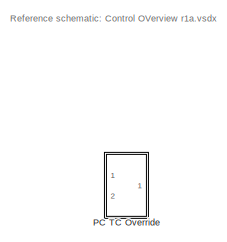
[diagram: root canvas - part 1/2, top left region]
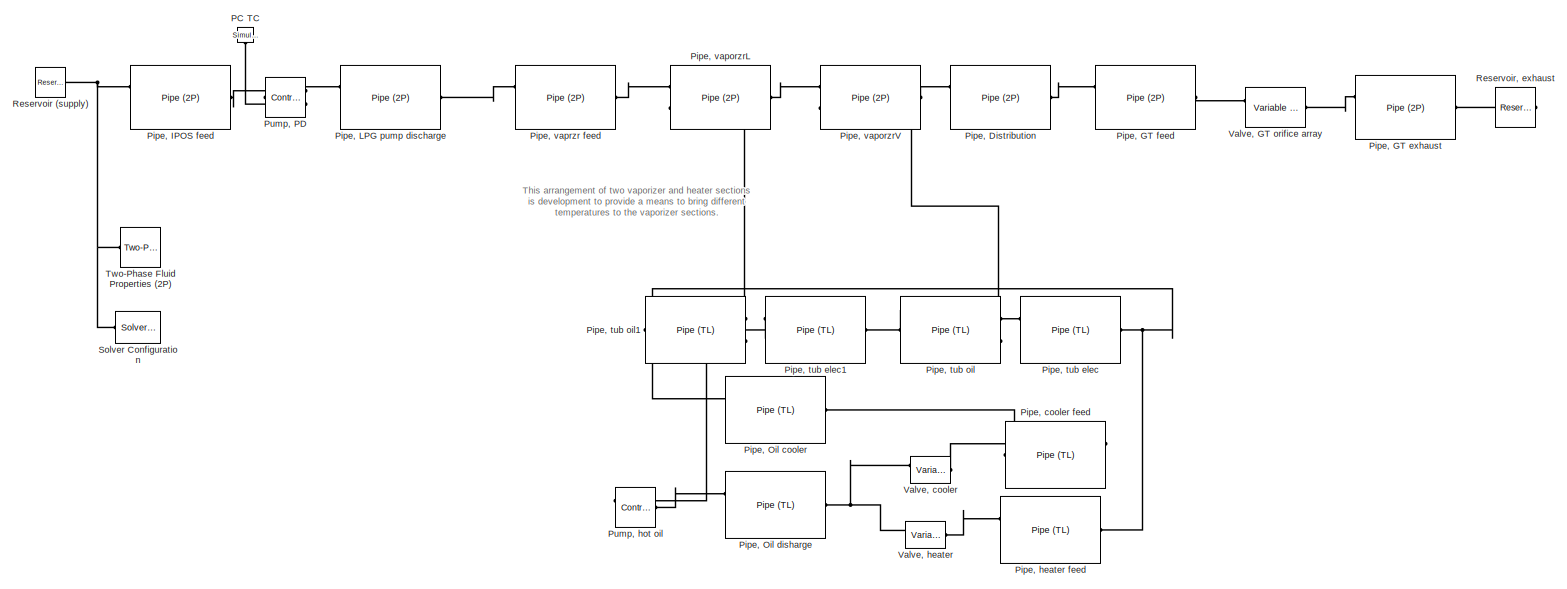
[diagram: root canvas - part 2/2, full width, middle band]
MODEL slx_cc9070d78904
KIND model
CONFIG AbsTol = auto
CONFIG EnableMultiTasking = off
CONFIG FixedStep = auto
CONFIG MaxStep = auto
CONFIG MinStep = auto
CONFIG RelTol = 1e-3
CONFIG SampleTimeConstraint = Unconstrained
CONFIG Solver = VariableStepAuto
CONFIG SolverName = VariableStepAuto
CONFIG StartTime = 0.0
CONFIG StopTime = 10.0
BLOCK [Reference] PC TC  REF=nesl_utility/Simulink-PS
Converter
  Ports = [1, 0, 0, 0, 0, 0, 1]
  SourceBlock = nesl_utility/Simulink-PS\nConverter
  SourceProductBaseCode = SS
  SourceProductName = Simscape
  SourceType = Simulink-PS\nConverter
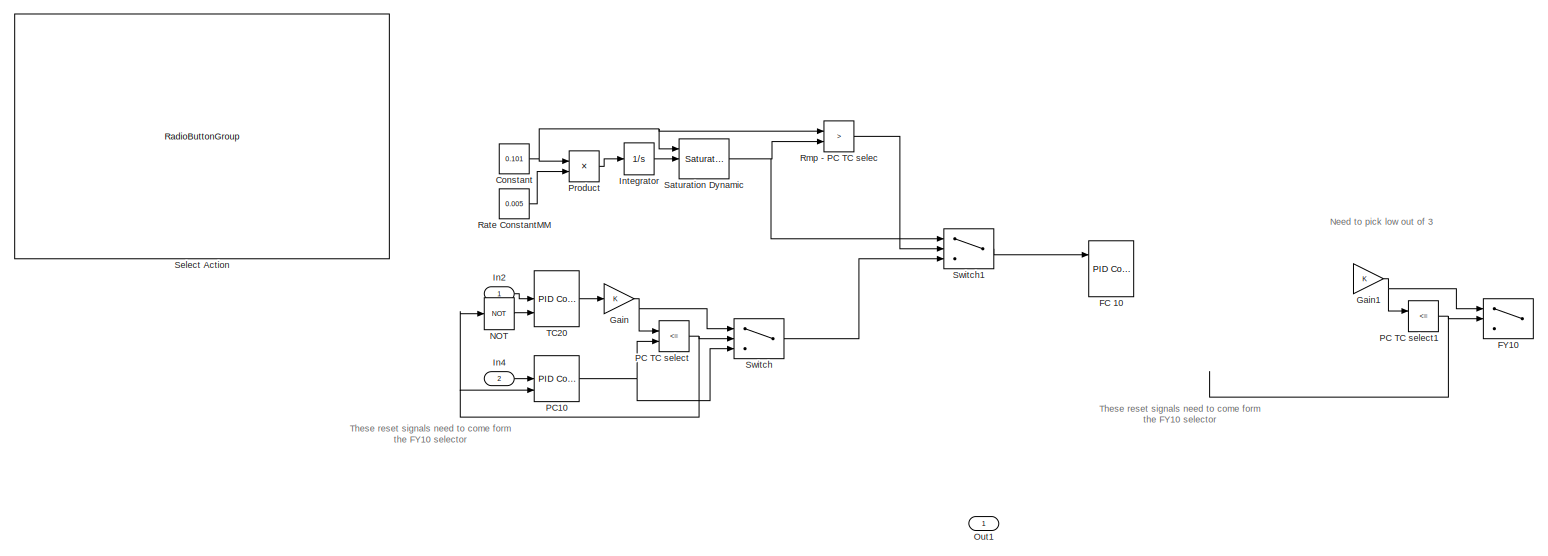
[diagram: PC TC Override - part 1/1, most of the canvas]
BLOCK [SubSystem] PC TC Override
  Ports = [2, 1]
  RequestExecContextInheritance = off
BLOCK [Constant] PC TC Override/Constant
  Value = 0.101
BLOCK [Reference] PC TC Override/FC 10  REF=simulink/Continuous/PID Controller (2DOF)
  Ports = [3, 1]
  SourceBlock = simulink/Continuous/PID Controller (2DOF)
  SourceProductBaseCode = SL
  SourceProductName = Simulink
  SourceType = PID 2dof
BLOCK [Switch] PC TC Override/FY10
  InputSameDT = off
  SaturateOnIntegerOverflow = off
BLOCK [Gain] PC TC Override/Gain
  OutDataTypeStr = Inherit: Inherit via internal rule
  ParamDataTypeStr = Inherit: Inherit via internal rule
  SaturateOnIntegerOverflow = off
BLOCK [Gain] PC TC Override/Gain1
  OutDataTypeStr = Inherit: Inherit via internal rule
  ParamDataTypeStr = Inherit: Inherit via internal rule
  SaturateOnIntegerOverflow = off
BLOCK [Inport] PC TC Override/In2
  IconDisplay = Port number
BLOCK [Inport] PC TC Override/In4
  IconDisplay = Port number
  Port = 2
BLOCK [Integrator] PC TC Override/Integrator
  Ports = [1, 1]
  ZeroCross = off
BLOCK [Logic] PC TC Override/NOT
  AllPortsSameDT = off
  IconShape = distinctive
  Operator = NOT
  OutDataTypeStr = boolean
  Ports = [1, 1]
BLOCK [Outport] PC TC Override/Out1
  IconDisplay = Port number
BLOCK [RelationalOperator] PC TC Override/PC TC select
  InputSameDT = off
  Operator = <=
  OutDataTypeStr = boolean
  Ports = [2, 1]
  RndMeth = Simplest
BLOCK [RelationalOperator] PC TC Override/PC TC select1
  InputSameDT = off
  Operator = <=
  OutDataTypeStr = boolean
  Ports = [2, 1]
  RndMeth = Simplest
BLOCK [Reference] PC TC Override/PC10  REF=simulink/Continuous/PID Controller (2DOF)
  Ports = [3, 1]
  SourceBlock = simulink/Continuous/PID Controller (2DOF)
  SourceProductBaseCode = SL
  SourceProductName = Simulink
  SourceType = PID 2dof
BLOCK [Product] PC TC Override/Product
  InputSameDT = off
  OutDataTypeStr = Inherit: Inherit via internal rule
  Ports = [2, 1]
  RndMeth = Floor
  SaturateOnIntegerOverflow = off
BLOCK [Constant] PC TC Override/Rate ConstantMM
  Value = 0.005
BLOCK [RelationalOperator] PC TC Override/Rmp - PC TC selec
  InputSameDT = off
  Operator = >
  OutDataTypeStr = boolean
  Ports = [2, 1]
  RndMeth = Simplest
BLOCK [Reference] PC TC Override/Saturation Dynamic  REF=simulink/Discontinuities/Saturation
Dynamic
  Ports = [3, 1]
  SourceBlock = simulink/Discontinuities/Saturation\nDynamic
  SourceProductBaseCode = SL
  SourceProductName = Simulink
  SourceType = Saturation Dynamic
BLOCK [RadioButtonGroup] PC TC Override/Select Action
  ButtonGroupName = Flow Rate
  SelectedLabel = Ramp to Start
BLOCK [Switch] PC TC Override/Switch
  InputSameDT = off
  SaturateOnIntegerOverflow = off
BLOCK [Switch] PC TC Override/Switch1
  Criteria = u2 > Threshold
  InputSameDT = off
  SaturateOnIntegerOverflow = off
BLOCK [Reference] PC TC Override/TC20  REF=simulink/Continuous/PID Controller (2DOF)
  Ports = [3, 1]
  SourceBlock = simulink/Continuous/PID Controller (2DOF)
  SourceProductBaseCode = SL
  SourceProductName = Simulink
  SourceType = PID 2dof
BLOCK [Reference] Pipe, Distribution  REF=fl_lib/Two-Phase Fluid/Elements/Pipe (2P)
  Ports = [0, 0, 0, 0, 0, 2, 1]
  SourceBlock = fl_lib/Two-Phase Fluid/Elements/Pipe (2P)
  SourceProductBaseCode = SS
  SourceProductName = Simscape
  SourceType = Pipe (2P)
BLOCK [Reference] Pipe, GT exhaust  REF=fl_lib/Two-Phase Fluid/Elements/Pipe (2P)
  Ports = [0, 0, 0, 0, 0, 2, 1]
  SourceBlock = fl_lib/Two-Phase Fluid/Elements/Pipe (2P)
  SourceProductBaseCode = SS
  SourceProductName = Simscape
  SourceType = Pipe (2P)
BLOCK [Reference] Pipe, GT feed  REF=fl_lib/Two-Phase Fluid/Elements/Pipe (2P)
  Ports = [0, 0, 0, 0, 0, 2, 1]
  SourceBlock = fl_lib/Two-Phase Fluid/Elements/Pipe (2P)
  SourceProductBaseCode = SS
  SourceProductName = Simscape
  SourceType = Pipe (2P)
BLOCK [Reference] Pipe, IPOS feed  REF=fl_lib/Two-Phase Fluid/Elements/Pipe (2P)
  Ports = [0, 0, 0, 0, 0, 2, 1]
  SourceBlock = fl_lib/Two-Phase Fluid/Elements/Pipe (2P)
  SourceProductBaseCode = SS
  SourceProductName = Simscape
  SourceType = Pipe (2P)
BLOCK [Reference] Pipe, LPG pump discharge  REF=fl_lib/Two-Phase Fluid/Elements/Pipe (2P)
  Ports = [0, 0, 0, 0, 0, 2, 1]
  SourceBlock = fl_lib/Two-Phase Fluid/Elements/Pipe (2P)
  SourceProductBaseCode = SS
  SourceProductName = Simscape
  SourceType = Pipe (2P)
BLOCK [Reference] Pipe, Oil cooler  REF=fl_lib/Thermal Liquid/Elements/Pipe (TL)
  Ports = [0, 0, 0, 0, 0, 2, 1]
  SourceBlock = fl_lib/Thermal Liquid/Elements/Pipe (TL)
  SourceProductBaseCode = SS
  SourceProductName = Simscape
  SourceType = Pipe (TL)
BLOCK [Reference] Pipe, Oil disharge  REF=fl_lib/Thermal Liquid/Elements/Pipe (TL)
  Ports = [0, 0, 0, 0, 0, 2, 1]
  SourceBlock = fl_lib/Thermal Liquid/Elements/Pipe (TL)
  SourceProductBaseCode = SS
  SourceProductName = Simscape
  SourceType = Pipe (TL)
BLOCK [Reference] Pipe, cooler feed  REF=fl_lib/Thermal Liquid/Elements/Pipe (TL)
  Ports = [0, 0, 0, 0, 0, 2, 1]
  SourceBlock = fl_lib/Thermal Liquid/Elements/Pipe (TL)
  SourceProductBaseCode = SS
  SourceProductName = Simscape
  SourceType = Pipe (TL)
BLOCK [Reference] Pipe, heater feed  REF=fl_lib/Thermal Liquid/Elements/Pipe (TL)
  Ports = [0, 0, 0, 0, 0, 2, 1]
  SourceBlock = fl_lib/Thermal Liquid/Elements/Pipe (TL)
  SourceProductBaseCode = SS
  SourceProductName = Simscape
  SourceType = Pipe (TL)
BLOCK [Reference] Pipe, tub elec  REF=fl_lib/Thermal Liquid/Elements/Pipe (TL)
  Ports = [0, 0, 0, 0, 0, 2, 1]
  SourceBlock = fl_lib/Thermal Liquid/Elements/Pipe (TL)
  SourceProductBaseCode = SS
  SourceProductName = Simscape
  SourceType = Pipe (TL)
BLOCK [Reference] Pipe, tub elec1  REF=fl_lib/Thermal Liquid/Elements/Pipe (TL)
  Ports = [0, 0, 0, 0, 0, 2, 1]
  SourceBlock = fl_lib/Thermal Liquid/Elements/Pipe (TL)
  SourceProductBaseCode = SS
  SourceProductName = Simscape
  SourceType = Pipe (TL)
BLOCK [Reference] Pipe, tub oil  REF=fl_lib/Thermal Liquid/Elements/Pipe (TL)
  Ports = [0, 0, 0, 0, 0, 2, 1]
  SourceBlock = fl_lib/Thermal Liquid/Elements/Pipe (TL)
  SourceProductBaseCode = SS
  SourceProductName = Simscape
  SourceType = Pipe (TL)
BLOCK [Reference] Pipe, tub oil1  REF=fl_lib/Thermal Liquid/Elements/Pipe (TL)
  Ports = [0, 0, 0, 0, 0, 2, 1]
  SourceBlock = fl_lib/Thermal Liquid/Elements/Pipe (TL)
  SourceProductBaseCode = SS
  SourceProductName = Simscape
  SourceType = Pipe (TL)
BLOCK [Reference] Pipe, vaporzrL  REF=fl_lib/Two-Phase Fluid/Elements/Pipe (2P)
  Ports = [0, 0, 0, 0, 0, 2, 1]
  SourceBlock = fl_lib/Two-Phase Fluid/Elements/Pipe (2P)
  SourceProductBaseCode = SS
  SourceProductName = Simscape
  SourceType = Pipe (2P)
BLOCK [Reference] Pipe, vaporzrV  REF=fl_lib/Two-Phase Fluid/Elements/Pipe (2P)
  Ports = [0, 0, 0, 0, 0, 2, 1]
  SourceBlock = fl_lib/Two-Phase Fluid/Elements/Pipe (2P)
  SourceProductBaseCode = SS
  SourceProductName = Simscape
  SourceType = Pipe (2P)
BLOCK [Reference] Pipe, vaprzr feed  REF=fl_lib/Two-Phase Fluid/Elements/Pipe (2P)
  Ports = [0, 0, 0, 0, 0, 2, 1]
  SourceBlock = fl_lib/Two-Phase Fluid/Elements/Pipe (2P)
  SourceProductBaseCode = SS
  SourceProductName = Simscape
  SourceType = Pipe (2P)
BLOCK [Reference] Pump, PD  REF=fl_lib/Two-Phase Fluid/Sources/Controlled Mass Flow
Rate Source (2P)
  Ports = [0, 0, 0, 0, 0, 2, 1]
  SourceBlock = fl_lib/Two-Phase Fluid/Sources/Controlled Mass Flow\nRate Source (2P)
  SourceProductBaseCode = SS
  SourceProductName = Simscape
  SourceType = Controlled Mass Flow\nRate Source (2P)
BLOCK [Reference] Pump, hot oil  REF=fl_lib/Thermal Liquid/Sources/Controlled
Volumetric Flow Rate
Source (TL)
  Ports = [0, 0, 0, 0, 0, 2, 1]
  SourceBlock = fl_lib/Thermal Liquid/Sources/Controlled\nVolumetric Flow Rate\nSource (TL)
  SourceProductBaseCode = SS
  SourceProductName = Simscape
  SourceType = Controlled\nVolumetric Flow Rate\nSource (TL)
BLOCK [Reference] Reservoir (supply)  REF=fl_lib/Two-Phase Fluid/Elements/Reservoir (2P)
  Ports = [0, 0, 0, 0, 0, 1]
  SourceBlock = fl_lib/Two-Phase Fluid/Elements/Reservoir (2P)
  SourceProductBaseCode = SS
  SourceProductName = Simscape
  SourceType = Reservoir (2P)
BLOCK [Reference] Reservoir, exhaust  REF=fl_lib/Two-Phase Fluid/Elements/Reservoir (2P)
  Ports = [0, 0, 0, 0, 0, 1]
  SourceBlock = fl_lib/Two-Phase Fluid/Elements/Reservoir (2P)
  SourceProductBaseCode = SS
  SourceProductName = Simscape
  SourceType = Reservoir (2P)
BLOCK [Reference] Solver Configuration  REF=nesl_utility/Solver
Configuration
  Ports = [0, 0, 0, 0, 0, 0, 1]
  SourceBlock = nesl_utility/Solver\nConfiguration
  SourceProductBaseCode = SS
  SourceProductName = Simscape
  SourceType = Solver\nConfiguration
BLOCK [Reference] Two-Phase Fluid Properties (2P)  REF=fl_lib/Two-Phase Fluid/Utilities/Two-Phase Fluid
Properties (2P)
  Ports = [0, 0, 0, 0, 0, 0, 1]
  SourceBlock = fl_lib/Two-Phase Fluid/Utilities/Two-Phase Fluid\nProperties (2P)
  SourceProductBaseCode = SS
  SourceProductName = Simscape
  SourceType = Two-Phase Fluid\nProperties (2P)
BLOCK [Reference] Valve, GT orifice array  REF=fl_lib/Two-Phase Fluid/Elements/Variable Local
Restriction (2P)
  Ports = [0, 0, 0, 0, 0, 2, 1]
  SourceBlock = fl_lib/Two-Phase Fluid/Elements/Variable Local\nRestriction (2P)
  SourceProductBaseCode = SS
  SourceProductName = Simscape
  SourceType = Variable Local\nRestriction (2P)
BLOCK [Reference] Valve, cooler  REF=fl_lib/Thermal Liquid/Elements/Variable Local
Restriction (TL)
  Ports = [0, 0, 0, 0, 0, 2, 1]
  SourceBlock = fl_lib/Thermal Liquid/Elements/Variable Local\nRestriction (TL)
  SourceProductBaseCode = SS
  SourceProductName = Simscape
  SourceType = Variable Local\nRestriction (TL)
BLOCK [Reference] Valve, heater  REF=fl_lib/Thermal Liquid/Elements/Variable Local
Restriction (TL)
  Ports = [0, 0, 0, 0, 0, 2, 1]
  SourceBlock = fl_lib/Thermal Liquid/Elements/Variable Local\nRestriction (TL)
  SourceProductBaseCode = SS
  SourceProductName = Simscape
  SourceType = Variable Local\nRestriction (TL)
ANNOTATION (root): Reference schematic: Control OVerview r1a.vsdx
ANNOTATION (root): This arrangement of two vaporizer and heater sections is development to provide a means to bring different temperatures to the vaporizer sections.
ANNOTATION PC TC Override: Need to pick low out of 3
ANNOTATION PC TC Override: These reset signals need to come form the FY10 selector
NET PC TC Override/Constant:1 -> PC TC Override/Product:1, PC TC Override/Rmp - PC TC selec:1, PC TC Override/Saturation Dynamic:1
NET PC TC Override/Gain1:1 -> PC TC Override/FY10:1, PC TC Override/PC TC select1:1
NET PC TC Override/Gain:1 -> PC TC Override/PC TC select:1, PC TC Override/Switch:1
LINE PC TC Override/In2:1 -> PC TC Override/TC20:2
LINE PC TC Override/In4:1 -> PC TC Override/PC10:2
LINE PC TC Override/Integrator:1 -> PC TC Override/Saturation Dynamic:2
LINE PC TC Override/NOT:1 -> PC TC Override/TC20:3
LINE PC TC Override/PC TC select1:1 -> PC TC Override/FY10:2
NET PC TC Override/PC TC select:1 -> PC TC Override/NOT:1, PC TC Override/PC10:3, PC TC Override/Switch:2
NET PC TC Override/PC10:1 -> PC TC Override/PC TC select:2, PC TC Override/Switch:3
LINE PC TC Override/Product:1 -> PC TC Override/Integrator:1
LINE PC TC Override/Rate ConstantMM:1 -> PC TC Override/Product:2
LINE PC TC Override/Rmp - PC TC selec:1 -> PC TC Override/Switch1:2
NET PC TC Override/Saturation Dynamic:1 -> PC TC Override/Rmp - PC TC selec:2, PC TC Override/Switch1:1
LINE PC TC Override/Switch1:1 -> PC TC Override/FC 10:1
LINE PC TC Override/Switch:1 -> PC TC Override/Switch1:3
LINE PC TC Override/TC20:1 -> PC TC Override/Gain:1
PLINE PC TC:RConn1 -- Pump, PD:LConn2
PLINE Pipe, Distribution:LConn1 -- Pipe, vaporzrV:RConn1
PLINE Pipe, Distribution:RConn1 -- Pipe, GT feed:LConn1
PLINE Pipe, GT exhaust:LConn1 -- Valve, GT orifice array:RConn1
PLINE Pipe, GT exhaust:RConn1 -- Reservoir, exhaust:LConn1
PLINE Pipe, GT feed:RConn1 -- Valve, GT orifice array:LConn1
PNET net1: Pipe, IPOS feed:LConn1 -- Reservoir (supply):LConn1 -- Solver Configuration:RConn1 -- Two-Phase Fluid Properties (2P):RConn1
PLINE Pipe, IPOS feed:RConn1 -- Pump, PD:LConn1
PLINE Pipe, LPG pump discharge:LConn1 -- Pump, PD:RConn1
PLINE Pipe, LPG pump discharge:RConn1 -- Pipe, vaprzr feed:LConn1
PNET net2: Pipe, Oil cooler:LConn1 -- Pipe, heater feed:RConn1 -- Pipe, tub elec:RConn1
PLINE Pipe, Oil cooler:RConn1 -- Pipe, cooler feed:RConn1
PLINE Pipe, Oil disharge:LConn1 -- Pump, hot oil:RConn1
PNET net3: Pipe, Oil disharge:RConn1 -- Valve, cooler:LConn1 -- Valve, heater:LConn1
PLINE Pipe, cooler feed:LConn1 -- Valve, cooler:RConn1
PLINE Pipe, heater feed:LConn1 -- Valve, heater:RConn1
PLINE Pipe, tub elec1:LConn1 -- Pipe, tub oil1:RConn1
PLINE Pipe, tub elec1:RConn1 -- Pipe, tub oil:LConn1
PLINE Pipe, tub elec:LConn1 -- Pipe, tub oil:RConn1
PLINE Pipe, tub oil1:LConn1 -- Pump, hot oil:LConn1
PLINE Pipe, tub oil1:LConn2 -- Pipe, vaporzrL:LConn2
PLINE Pipe, tub oil:LConn2 -- Pipe, vaporzrV:LConn2
PLINE Pipe, vaporzrL:LConn1 -- Pipe, vaprzr feed:RConn1
PLINE Pipe, vaporzrL:RConn1 -- Pipe, vaporzrV:LConn1
note: NET lines group one-source signal fan-out (src -> all destinations, sorted); 1:1 wires keep LINE; PNET lines group multi-terminal physical nets as a canonical sorted terminal list (undirected conserving connections); 2-terminal nets keep the pairwise PLINE form
